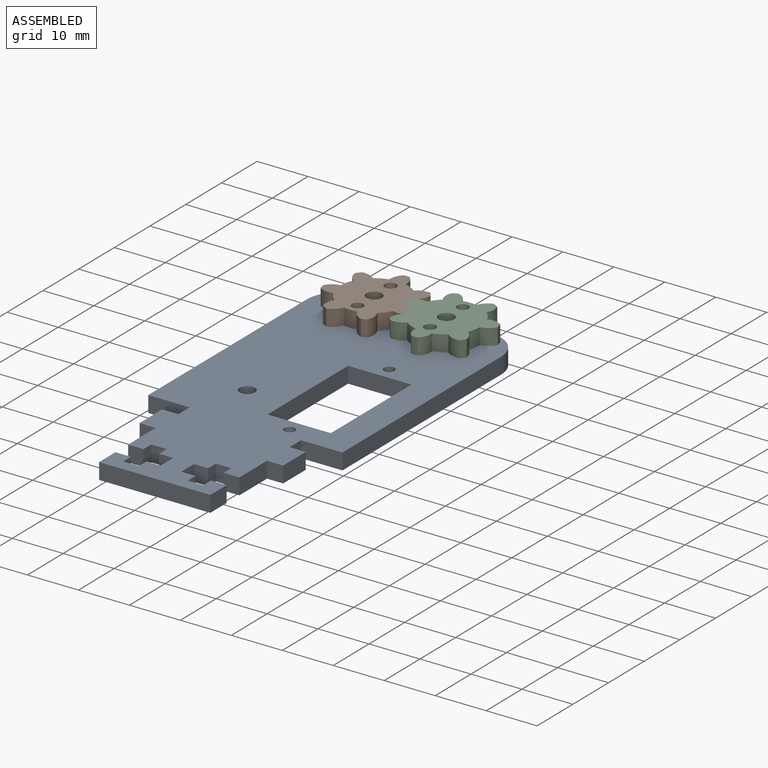
[diagram: assembled view]
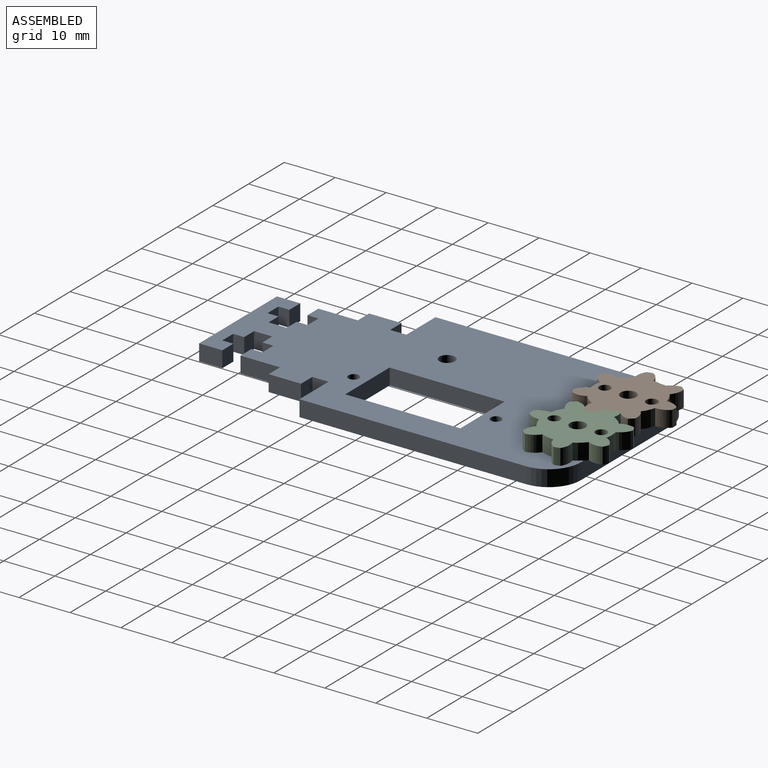
[diagram: assembled view, second angle]
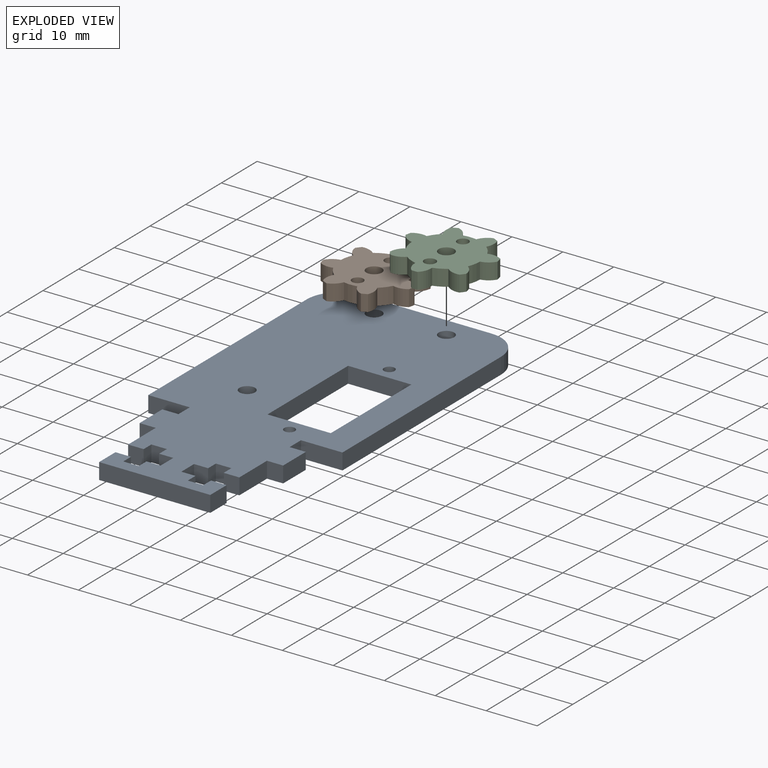
[diagram: exploded view]
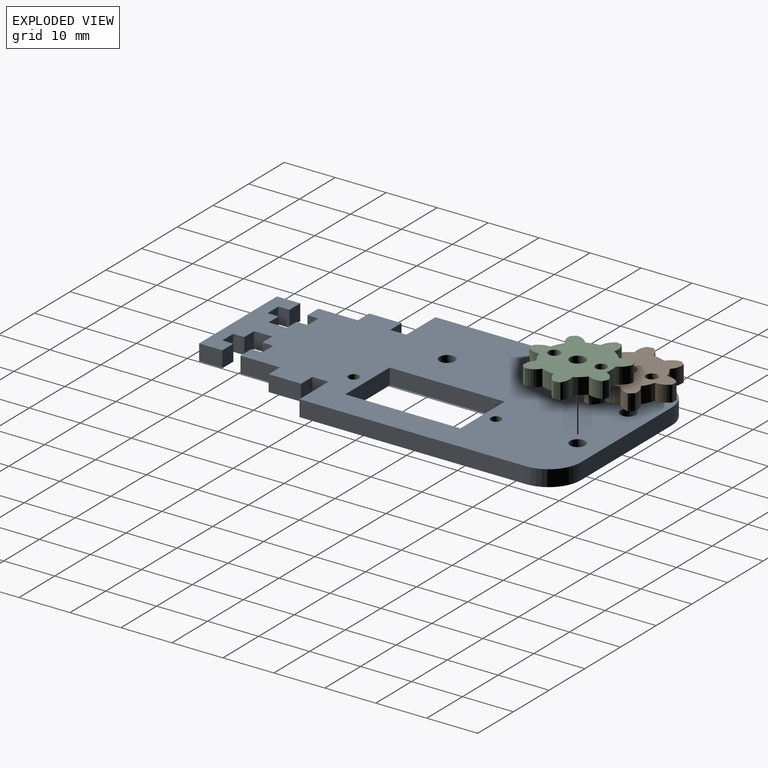
[diagram: exploded view, second angle]
ASSEMBLY  parts=3 mates=2
PART A: 53 faces, bbox 38.1x76.2x3.2 mm
  f0: plane 22.58x3.18mm, normal (1,0,0), area 71.7mm2, adj f1,f50,f51,f52
  f1: plane 12.42x3.18mm, normal (0,-1,0), area 39.4mm2, adj f0,f2,f51,f52
  f2: plane 22.58x3.18mm, normal (-1,0,0), area 71.7mm2, adj f1,f50,f51,f52
  f3: plane 3.18x3.05mm, normal (0,1,0), area 9.7mm2, adj f4,f44,f51,f52
  f4: plane 4.57x3.18mm, normal (-1,0,0), area 14.5mm2, adj f3,f5,f51,f52
  f5: plane 21.82x3.18mm, normal (0,-1,0), area 69.3mm2, adj f4,f6,f51,f52
  f6: plane 4.57x3.18mm, normal (1,0,0), area 14.5mm2, adj f5,f7,f51,f52
  f7: plane 3.18x3.07mm, normal (0,1,0), area 9.7mm2, adj f6,f8,f51,f52
  f8: plane 3.18x2.16mm, normal (-1,0,0), area 6.9mm2, adj f7,f9,f51,f52
  f9: plane 3.18x3.05mm, normal (0,1,0), area 9.7mm2, adj f8,f10,f51,f52
  f10: plane 3.18x2.16mm, normal (1,0,0), area 6.9mm2, adj f9,f11,f51,f52
  f11: plane 3.18x2.78mm, normal (0,1,0), area 8.8mm2, adj f10,f12,f51,f52
  f12: plane 3.56x3.18mm, normal (1,0,0), area 11.3mm2, adj f11,f13,f51,f52
  f13: plane 3.18x2.78mm, normal (0,-1,0), area 8.8mm2, adj f12,f14,f51,f52
  f14: plane 3.18x2.16mm, normal (1,0,0), area 6.9mm2, adj f13,f15,f51,f52
  f15: plane 3.18x3.05mm, normal (0,-1,0), area 9.7mm2, adj f14,f16,f51,f52
  f16: plane 3.18x2.16mm, normal (-1,0,0), area 6.9mm2, adj f15,f17,f51,f52
  f17: plane 3.18x3.07mm, normal (0,-1,0), area 9.7mm2, adj f16,f18,f51,f52
  f18: plane 7.75x3.18mm, normal (1,0,0), area 24.6mm2, adj f17,f19,f51,f52
  f19: plane 3.18x3.18mm, normal (0,-1,0), area 10.1mm2, adj f18,f20,f51,f52
  f20: plane 6.35x3.18mm, normal (1,0,0), area 20.2mm2, adj f19,f21,f51,f52
  f21: plane 3.18x3.18mm, normal (0,1,0), area 10.1mm2, adj f20,f22,f51,f52
  f22: plane 3.18x3.18mm, normal (1,0,0), area 10.1mm2, adj f21,f23,f51,f52
  f23: plane 8.14x3.18mm, normal (0,-1,0), area 25.8mm2, adj f22,f24,f51,f52
  f24: plane 44.46x3.18mm, normal (1,0,0), area 141.2mm2, adj f23,f25,f51,f52
  f25: cylinder r=6.35mm len=6.35mm, axis (0,0,-1), area 31.7mm2, adj f24,f26,f51,f52
  f26: plane 25.4x3.18mm, normal (0,1,0), area 80.6mm2, adj f25,f27,f51,f52
  f27: cylinder r=6.35mm len=6.35mm, axis (0,0,-1), area 31.7mm2, adj f26,f28,f51,f52
  f28: plane 44.45x3.18mm, normal (-1,0,0), area 141.1mm2, adj f27,f29,f51,f52
  f29: plane 8.14x3.18mm, normal (0,-1,0), area 25.8mm2, adj f28,f30,f51,f52
  f30: plane 3.18x3.18mm, normal (-1,0,0), area 10.1mm2, adj f29,f31,f51,f52
  f31: plane 3.18x3.18mm, normal (0,1,0), area 10.1mm2, adj f30,f32,f51,f52
  f32: plane 6.35x3.18mm, normal (-1,0,0), area 20.2mm2, adj f31,f33,f51,f52
  f33: plane 3.18x3.18mm, normal (0,-1,0), area 10.1mm2, adj f32,f34,f51,f52
  f34: plane 7.75x3.18mm, normal (-1,0,0), area 24.6mm2, adj f33,f35,f51,f52
  f35: plane 3.18x3.05mm, normal (0,-1,0), area 9.7mm2, adj f34,f36,f51,f52
  f36: plane 3.18x2.16mm, normal (1,0,0), area 6.9mm2, adj f35,f37,f51,f52
  f37: plane 3.18x3.05mm, normal (0,-1,0), area 9.7mm2, adj f36,f38,f51,f52
  f38: plane 3.18x2.16mm, normal (-1,0,0), area 6.9mm2, adj f37,f39,f51,f52
  f39: plane 3.18x2.78mm, normal (0,-1,0), area 8.8mm2, adj f38,f40,f51,f52
  f40: plane 3.56x3.18mm, normal (-1,0,0), area 11.3mm2, adj f39,f41,f51,f52
  f41: plane 3.18x2.78mm, normal (0,1,0), area 8.8mm2, adj f40,f42,f51,f52
  f42: plane 3.18x2.16mm, normal (-1,0,0), area 6.9mm2, adj f41,f43,f51,f52
  f43: plane 3.18x3.05mm, normal (0,1,0), area 9.7mm2, adj f42,f44,f51,f52
  f44: plane 3.18x2.16mm, normal (1,0,0), area 6.9mm2, adj f3,f43,f51,f52
  f45: cylinder r=1.52mm len=3.18mm, axis (0,0,-1), area 30.4mm2, adj f51,f52
  f46: cylinder r=1.52mm len=3.18mm, axis (0,0,-1), area 30.4mm2, adj f51,f52
  f47: cylinder r=1.05mm len=3.18mm, axis (0,0,-1), area 20.9mm2, adj f51,f52
  f48: cylinder r=1.52mm len=3.18mm, axis (0,0,-1), area 30.4mm2, adj f51,f52
  f49: cylinder r=1.05mm len=3.18mm, axis (0,0,-1), area 20.9mm2, adj f51,f52
  f50: plane 12.42x3.18mm, normal (0,1,0), area 39.4mm2, adj f0,f2,f51,f52
  f51: plane 76.21x38.11mm, normal (0,0,1), area 2114.1mm2, adj f0,f1,f2,f3,f4,f5,f6,f7
  f52: plane 76.21x38.11mm, normal (0,0,-1), area 2114.1mm2, adj f0,f1,f2,f3,f4,f5,f6,f7
PART B: 33 faces, bbox 17.9x3.2x17.5 mm
  f0: cylinder r=6.64mm len=3.18mm, axis (0,1,0), area 8.5mm2, adj f8,f9,f10,f29
  f1: cylinder r=6.64mm len=3.18mm, axis (0,1,0), area 8.5mm2, adj f8,f9,f26,f28
  f2: cylinder r=6.64mm len=3.18mm, axis (0,1,0), area 8.5mm2, adj f8,f9,f23,f25
  f3: cylinder r=6.64mm len=3.18mm, axis (0,1,0), area 8.5mm2, adj f8,f9,f20,f22
  f4: cylinder r=6.64mm len=3.18mm, axis (0,1,0), area 8.5mm2, adj f8,f9,f17,f19
  f5: cylinder r=6.64mm len=3.18mm, axis (0,1,0), area 8.5mm2, adj f8,f9,f14,f16
  f6: cylinder r=6.64mm len=3.18mm, axis (0,1,0), area 8.5mm2, adj f8,f9,f11,f13
  f7: cylinder r=1.52mm len=3.18mm, axis (0,1,0), area 30.4mm2, adj f8,f9
  f8: plane 17.95x17.55mm, normal (0,-1,0), area 169.9mm2, adj f0,f1,f2,f3,f4,f5,f6,f7
  f9: plane 17.95x17.55mm, normal (0,1,0), area 169.9mm2, adj f0,f1,f2,f3,f4,f5,f6,f7
  f10: cylinder r=3.26mm len=3.18mm, axis (0,1,0), area 9.3mm2, adj f0,f8,f9,f12
  f11: cylinder r=3.26mm len=3.18mm, axis (0,1,0), area 9.3mm2, adj f6,f8,f9,f12
  f12: cylinder r=9.09mm len=3.18mm, axis (0,1,0), area 3.8mm2, adj f8,f9,f10,f11
  f13: cylinder r=3.26mm len=3.18mm, axis (0,1,0), area 9.3mm2, adj f6,f8,f9,f15
  f14: cylinder r=3.26mm len=3.18mm, axis (0,1,0), area 9.3mm2, adj f5,f8,f9,f15
  f15: cylinder r=9.09mm len=3.18mm, axis (0,1,0), area 3.8mm2, adj f8,f9,f13,f14
  f16: cylinder r=3.26mm len=3.18mm, axis (0,1,0), area 9.3mm2, adj f5,f8,f9,f18
  f17: cylinder r=3.26mm len=3.18mm, axis (0,1,0), area 9.3mm2, adj f4,f8,f9,f18
  f18: cylinder r=9.09mm len=3.18mm, axis (0,1,0), area 3.8mm2, adj f8,f9,f16,f17
  f19: cylinder r=3.26mm len=3.18mm, axis (0,1,0), area 9.3mm2, adj f4,f8,f9,f21
  f20: cylinder r=3.26mm len=3.18mm, axis (0,1,0), area 9.3mm2, adj f3,f8,f9,f21
  f21: cylinder r=9.09mm len=3.18mm, axis (0,1,0), area 3.8mm2, adj f8,f9,f19,f20
  f22: cylinder r=3.26mm len=3.18mm, axis (0,1,0), area 9.3mm2, adj f3,f8,f9,f24
  f23: cylinder r=3.26mm len=3.18mm, axis (0,1,0), area 9.3mm2, adj f2,f8,f9,f24
  f24: cylinder r=9.09mm len=3.18mm, axis (0,1,0), area 3.8mm2, adj f8,f9,f22,f23
  f25: cylinder r=3.26mm len=3.18mm, axis (0,1,0), area 9.3mm2, adj f2,f8,f9,f27
  f26: cylinder r=3.26mm len=3.18mm, axis (0,1,0), area 9.3mm2, adj f1,f8,f9,f27
  f27: cylinder r=9.09mm len=3.18mm, axis (0,1,0), area 3.8mm2, adj f8,f9,f25,f26
  f28: cylinder r=3.26mm len=3.18mm, axis (0,1,0), area 9.3mm2, adj f1,f8,f9,f30
  f29: cylinder r=3.26mm len=3.18mm, axis (0,1,0), area 9.3mm2, adj f0,f8,f9,f30
  f30: cylinder r=9.09mm len=3.18mm, axis (0,1,0), area 3.8mm2, adj f8,f9,f28,f29
  f31: cylinder r=1.14mm len=3.18mm, axis (0,-1,0), area 22.8mm2, adj f8,f9
  f32: cylinder r=1.11mm len=3.18mm, axis (0,-1,0), area 22.1mm2, adj f8,f9
PART C: same geometry as B
PLACE A t=(1.26,-1.66,0.23)mm
PLACE B rot(axis=(1,0,0),90deg) t=(-5.84,35.47,6.58)mm
PLACE C rot(axis=(-1,0,0),90deg) t=(8.35,35.47,3.41)mm
MATE revolute C.f0 <-> A.f46  axis (0,0,-1) through (8.35,35.47,3.41)mm
MATE revolute B.f0 <-> A.f48  axis (0,0,-1) through (-5.84,35.47,3.41)mm
